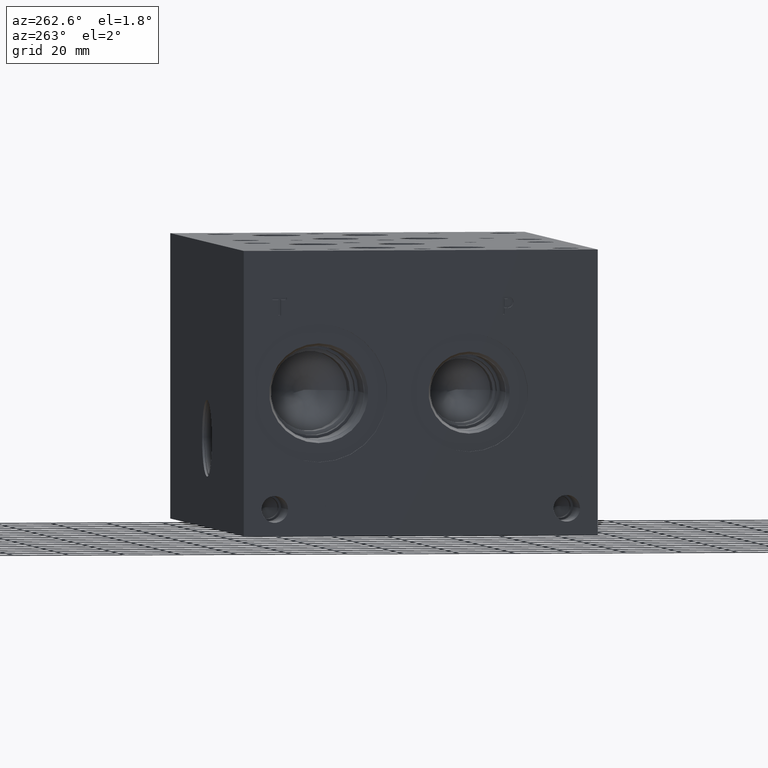
[diagram: clean part render]
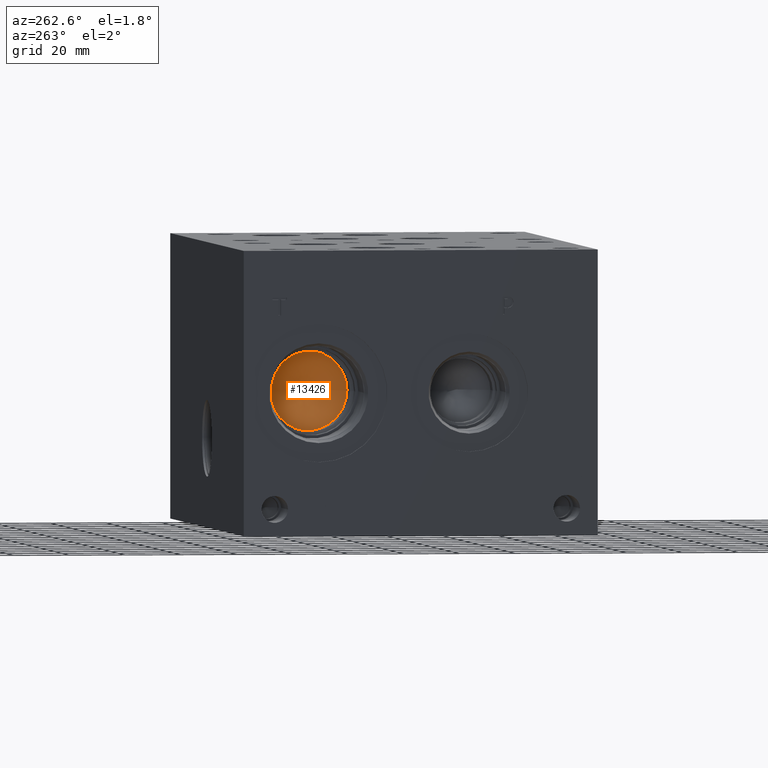
[diagram: same view with one face highlighted and labeled with its STEP entity id]
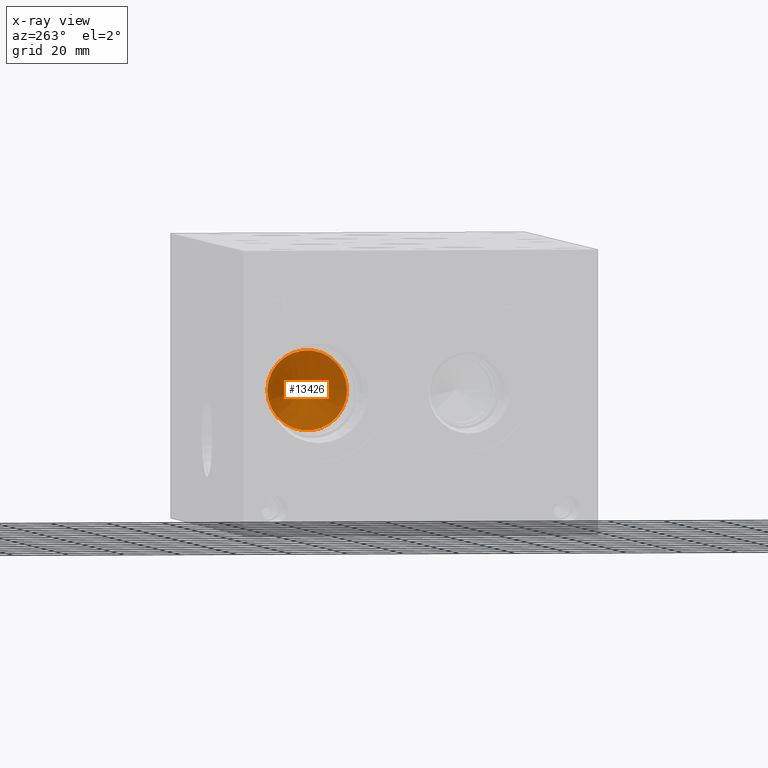
[diagram: x-ray of the same camera — body ghosted, the highlighted face saturated]
A machine part, auxiliary view. The second image highlights one B-rep face of the part: STEP entity #13426.
The next image is the same camera in x-ray: the body ghosted, the highlighted face saturated — about 2% of this face is hidden behind the body in this view.
In plain terms, the highlighted conical surface has half-angle 60 deg.
Its self-contained STEP definition (entity closure, byte-faithful):
#35=CONICAL_SURFACE('',#14123,7.14375,1.0471975511966);
#319=CIRCLE('',#14124,14.2875);
#320=CIRCLE('',#14125,14.2875);
#1630=FACE_OUTER_BOUND('',#2409,.T.);
#2409=EDGE_LOOP('',(#11442,#11443,#11444,#11445));
#3689=LINE('',#22622,#4886);
#4886=VECTOR('',#16664,7.14375);
#6326=VERTEX_POINT('',#22618);
#6327=VERTEX_POINT('',#22619);
#6328=VERTEX_POINT('',#22621);
#8112=EDGE_CURVE('',#6326,#6327,#319,.T.);
#8113=EDGE_CURVE('',#6327,#6328,#3689,.T.);
#8114=EDGE_CURVE('',#6327,#6326,#320,.T.);
#11442=ORIENTED_EDGE('',*,*,#8112,.T.);
#11443=ORIENTED_EDGE('',*,*,#8113,.T.);
#11444=ORIENTED_EDGE('',*,*,#8113,.F.);
#11445=ORIENTED_EDGE('',*,*,#8114,.T.);
#13426=ADVANCED_FACE('',(#1630),#35,.F.);
#14123=AXIS2_PLACEMENT_3D('',#22617,#16660,#16661);
#14124=AXIS2_PLACEMENT_3D('',#22620,#16662,#16663);
#14125=AXIS2_PLACEMENT_3D('',#22623,#16665,#16666);
#16660=DIRECTION('center_axis',(-1.,0.,0.));
#16661=DIRECTION('ref_axis',(0.,1.,0.));
#16662=DIRECTION('center_axis',(-1.,0.,0.));
#16663=DIRECTION('ref_axis',(0.,1.,0.));
#16664=DIRECTION('',(0.5,0.866025403784438,-1.06057523872491E-16));
#16665=DIRECTION('center_axis',(-1.,0.,0.));
#16666=DIRECTION('ref_axis',(0.,1.,0.));
#22617=CARTESIAN_POINT('Origin',(36.7725059855234,100.0252,50.8));
#22618=CARTESIAN_POINT('',(32.64806,114.3127,50.8));
#22619=CARTESIAN_POINT('',(32.64806,85.7377,50.8));
#22620=CARTESIAN_POINT('Origin',(32.64806,100.0252,50.8));
#22621=CARTESIAN_POINT('',(40.8969519710468,100.0252,50.8));
#22622=CARTESIAN_POINT('',(36.7725059855234,92.88145,50.8));
#22623=CARTESIAN_POINT('Origin',(32.64806,100.0252,50.8));